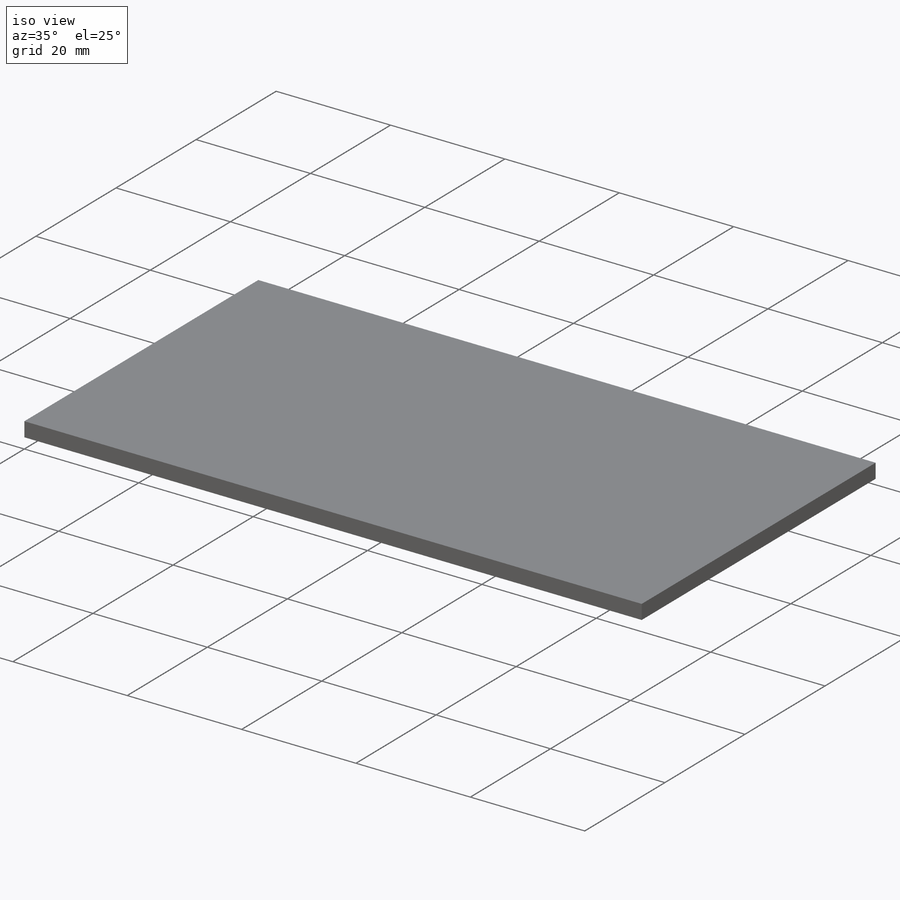
[diagram: iso view]
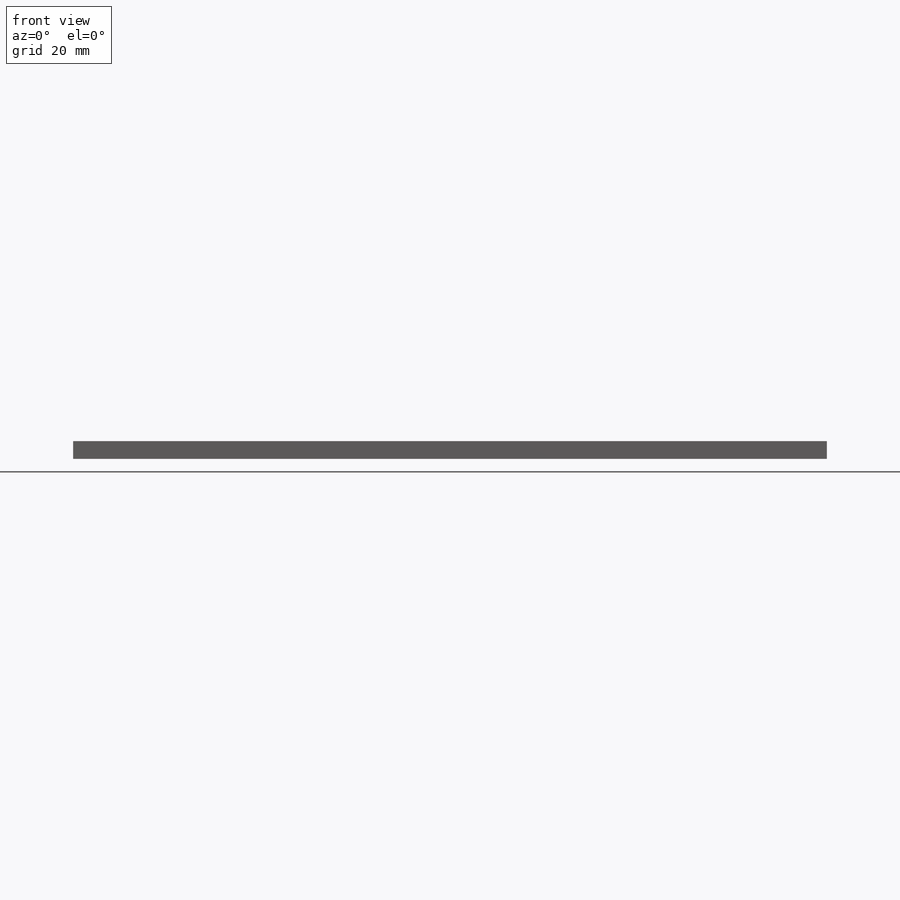
[diagram: front view]
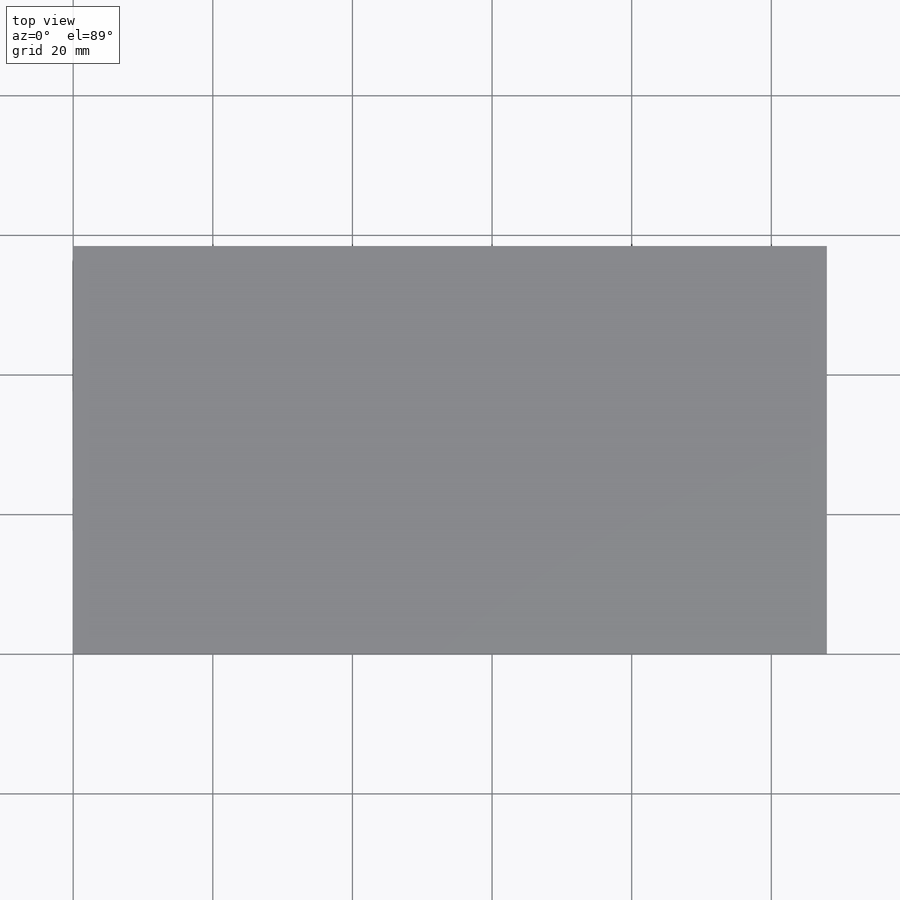
[diagram: top view]
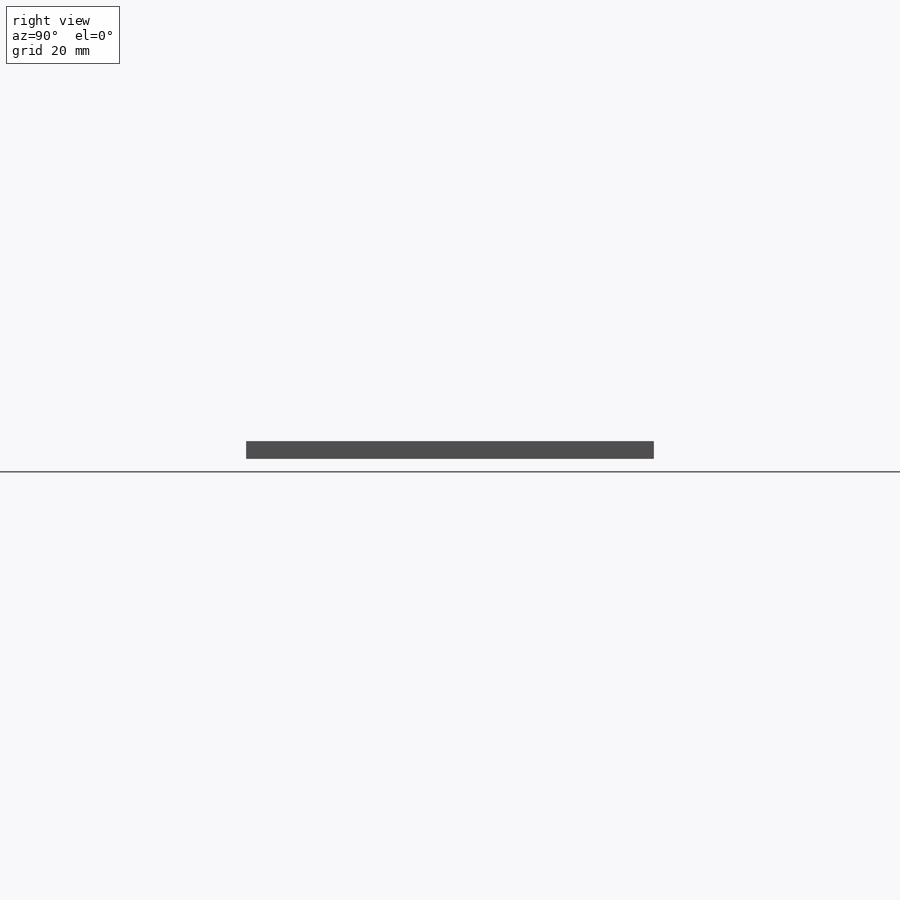
[diagram: right view]
SOLIDWORKS PART (.sldprt)
format: sldprt  version: not decoded by parser v0  size: 169,984 bytes
history: native  units: mm
features: sketch x4, extrude x2, cut_extrude x2, material x1, plane x1 (+11 scaffold rows collapsed)
feature tree (21):
  scaffold x11  (default folders/planes/origin — collapsed)
  material  "Material <not specified>"
  sketch  "Sketch1"  dims[D1=107.95mm D2=58.42mm]
  extrude  "Boss-Extrude1"  Depth=2.54mm
  plane  "Plane1"
  sketch  "Sketch3"  dims[D2=12.7mm D3=63.5mm D1=0.0mm]
  cut_extrude  "Cut-Extrude1"  Depth=2.54mm
  sketch  "Sketch4"  dims[D1=3.4544mm D2=3.175mm D3=3.175mm]
  cut_extrude  "Cut-Extrude2"  Depth=2.54mm
  sketch  "Sketch5"  dims[D3=0.254mm D1=50.8mm D2=50.8mm]
  extrude  "Boss-Extrude2"  Depth=2.54mm
decode coverage: 8 of 8 modeling features carry decoded parameters
note: suppression state not decoded; provenance and decode notes live in map.json
